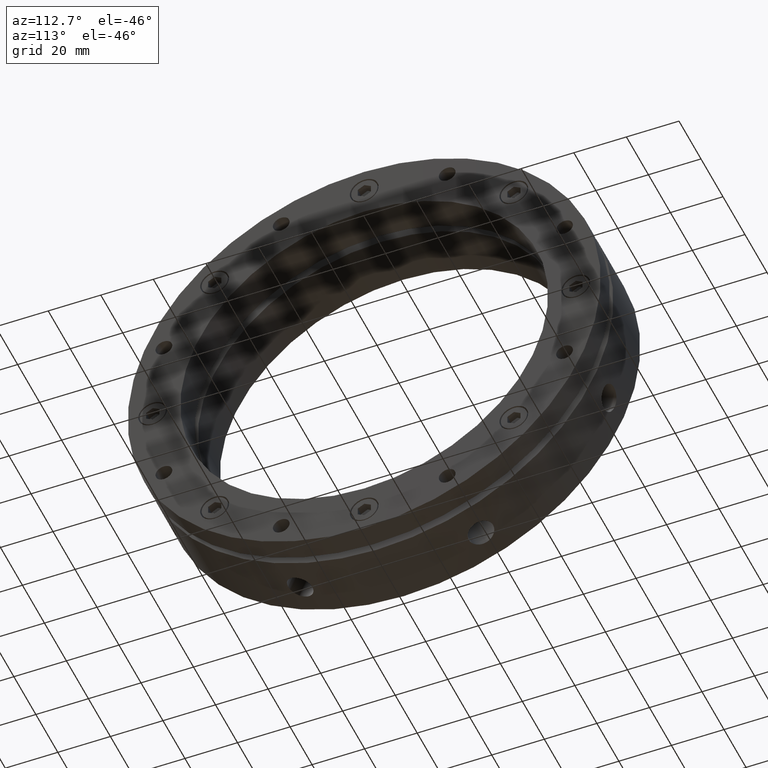
[diagram: clean part render]
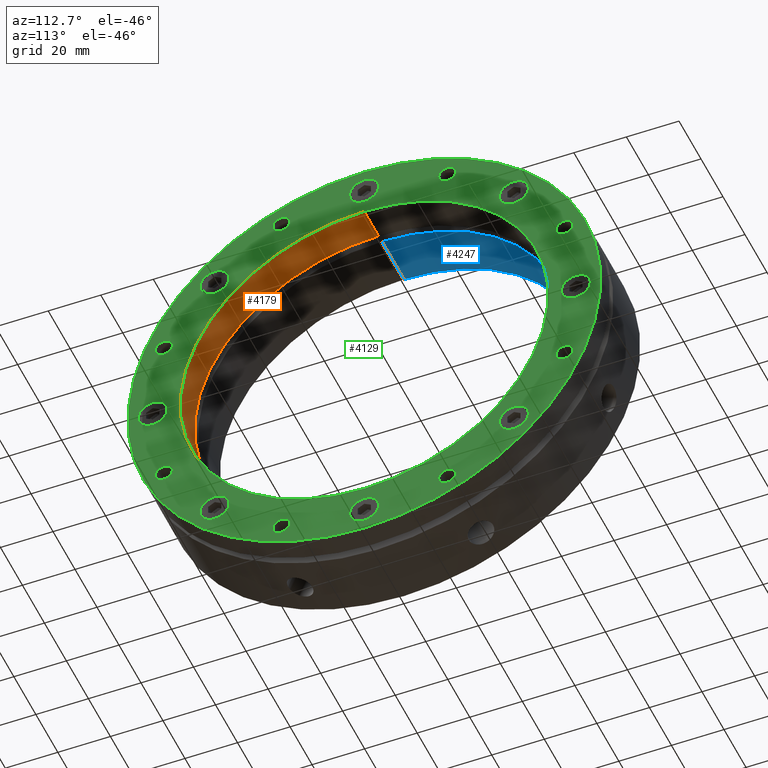
[diagram: same view with three faces highlighted in distinct colors, each labeled with its STEP entity id]
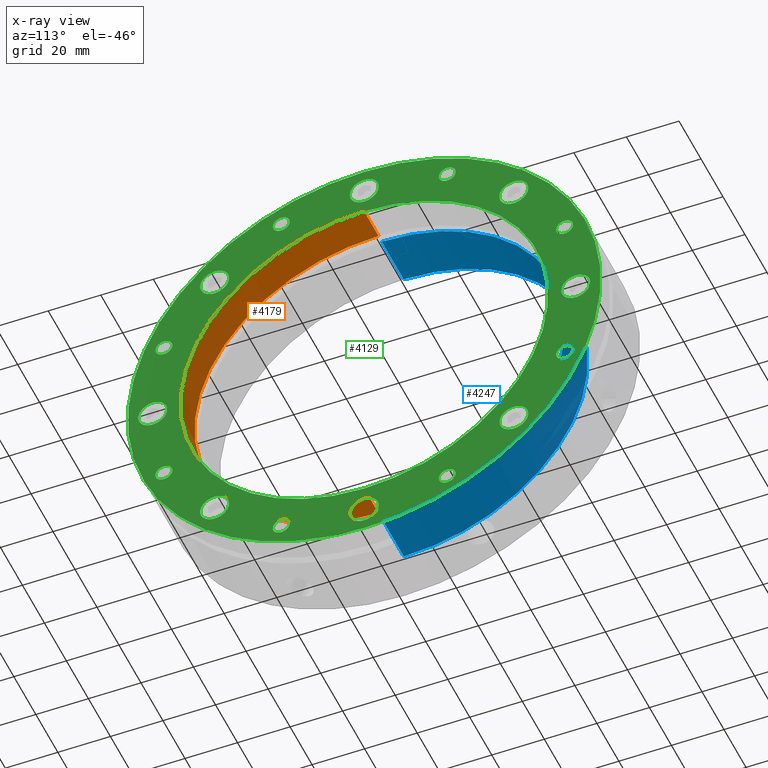
[diagram: x-ray of the same camera — body ghosted, the three highlighted faces saturated]
A machine part, auxiliary view with three faces highlighted in distinct colors.
The next image is the same camera in x-ray (body ghosted, the three faces saturated) — at least one of them is partly hidden behind the body in this view.
Their STEP definitions:

[orange] entity #4179 — the highlighted cylindrical surface (partial cylindrical patch) has radius 70 mm, axis along (1, 0, 0).
#20 = CYLINDRICAL_SURFACE ( 'NONE', #1130, 70.00000000000000000 ) ;
#29 = FACE_OUTER_BOUND ( 'NONE', #270, .T. ) ;
#270 = EDGE_LOOP ( 'NONE', ( #872, #866, #860, #838 ) ) ;
#838 = ORIENTED_EDGE ( 'NONE', *, *, #3204, .F. ) ;
#860 = ORIENTED_EDGE ( 'NONE', *, *, #3205, .F. ) ;
#866 = ORIENTED_EDGE ( 'NONE', *, *, #3206, .T. ) ;
#872 = ORIENTED_EDGE ( 'NONE', *, *, #3207, .T. ) ;
#1130 = AXIS2_PLACEMENT_3D ( 'NONE', #4900, #4898, #4896 ) ;
#1156 = LINE ( 'NONE', #1332, #1171 ) ;
#1171 = VECTOR ( 'NONE', #1330, 1000.000000000000000 ) ;
#1173 = CIRCLE ( 'NONE', #3183, 70.00000000000000000 ) ;
#1180 = VECTOR ( 'NONE', #1325, 1000.000000000000000 ) ;
#1181 = LINE ( 'NONE', #1326, #1180 ) ;
#1187 = CIRCLE ( 'NONE', #3182, 70.00000000000000000 ) ;
#1325 = DIRECTION ( 'NONE',  ( 1.000000000000000000, 0.0000000000000000000, 0.0000000000000000000 ) ) ;
#1326 = CARTESIAN_POINT ( 'NONE',  ( 17.99999999999997900, 0.0000000000000000000, -70.00000000000000000 ) ) ;
#1330 = DIRECTION ( 'NONE',  ( 1.000000000000000000, 0.0000000000000000000, 0.0000000000000000000 ) ) ;
#1332 = CARTESIAN_POINT ( 'NONE',  ( 17.99999999999997900, 8.572527594031473000E-015, 70.00000000000000000 ) ) ;
#1333 = CARTESIAN_POINT ( 'NONE',  ( 35.99999999999998600, 0.0000000000000000000, 0.0000000000000000000 ) ) ;
#1334 = DIRECTION ( 'NONE',  ( -1.000000000000000000, -0.0000000000000000000, -0.0000000000000000000 ) ) ;
#1335 = DIRECTION ( 'NONE',  ( 0.0000000000000000000, 0.0000000000000000000, -1.000000000000000000 ) ) ;
#1337 = CARTESIAN_POINT ( 'NONE',  ( 22.99999999999998600, 0.0000000000000000000, 0.0000000000000000000 ) ) ;
#1338 = DIRECTION ( 'NONE',  ( -1.000000000000000000, -0.0000000000000000000, -0.0000000000000000000 ) ) ;
#1339 = DIRECTION ( 'NONE',  ( 0.0000000000000000000, 0.0000000000000000000, -1.000000000000000000 ) ) ;
#3182 = AXIS2_PLACEMENT_3D ( 'NONE', #1337, #1338, #1339 ) ;
#3183 = AXIS2_PLACEMENT_3D ( 'NONE', #1333, #1334, #1335 ) ;
#3204 = EDGE_CURVE ( 'NONE', #3927, #3919, #1181, .T. ) ;
#3205 = EDGE_CURVE ( 'NONE', #3919, #3918, #1173, .T. ) ;
#3206 = EDGE_CURVE ( 'NONE', #3926, #3918, #1156, .T. ) ;
#3207 = EDGE_CURVE ( 'NONE', #3927, #3926, #1187, .T. ) ;
#3918 = VERTEX_POINT ( 'NONE', #4479 ) ;
#3919 = VERTEX_POINT ( 'NONE', #4480 ) ;
#3926 = VERTEX_POINT ( 'NONE', #4484 ) ;
#3927 = VERTEX_POINT ( 'NONE', #4485 ) ;
#4179 = ADVANCED_FACE ( 'NONE', ( #29 ), #20, .F. ) ;
#4479 = CARTESIAN_POINT ( 'NONE',  ( 35.99999999999998600, 8.572527594031473000E-015, 70.00000000000000000 ) ) ;
#4480 = CARTESIAN_POINT ( 'NONE',  ( 35.99999999999998600, 0.0000000000000000000, -70.00000000000000000 ) ) ;
#4484 = CARTESIAN_POINT ( 'NONE',  ( 22.99999999999998600, 8.572527594031473000E-015, 70.00000000000000000 ) ) ;
#4485 = CARTESIAN_POINT ( 'NONE',  ( 22.99999999999998600, 0.0000000000000000000, -70.00000000000000000 ) ) ;
#4896 = DIRECTION ( 'NONE',  ( 0.0000000000000000000, 0.0000000000000000000, -1.000000000000000000 ) ) ;
#4898 = DIRECTION ( 'NONE',  ( 1.000000000000000000, 0.0000000000000000000, 0.0000000000000000000 ) ) ;
#4900 = CARTESIAN_POINT ( 'NONE',  ( 17.99999999999997900, 0.0000000000000000000, 0.0000000000000000000 ) ) ;

[blue] entity #4247 — the highlighted cylindrical surface (partial cylindrical patch) has radius 70 mm, axis along (1, 0, 0).
#75 = EDGE_LOOP ( 'NONE', ( #467, #466, #465, #464 ) ) ;
#464 = ORIENTED_EDGE ( 'NONE', *, *, #5399, .F. ) ;
#465 = ORIENTED_EDGE ( 'NONE', *, *, #5999, .T. ) ;
#466 = ORIENTED_EDGE ( 'NONE', *, *, #5447, .F. ) ;
#467 = ORIENTED_EDGE ( 'NONE', *, *, #5927, .F. ) ;
#1064 = AXIS2_PLACEMENT_3D ( 'NONE', #5112, #5110, #5108 ) ;
#1572 = FACE_OUTER_BOUND ( 'NONE', #75, .T. ) ;
#1579 = CYLINDRICAL_SURFACE ( 'NONE', #1064, 70.00000000000000000 ) ;
#1659 = CIRCLE ( 'NONE', #5822, 70.00000000000000000 ) ;
#1709 = CIRCLE ( 'NONE', #3717, 70.00000000000000000 ) ;
#1875 = LINE ( 'NONE', #3023, #1877 ) ;
#1877 = VECTOR ( 'NONE', #3018, 1000.000000000000000 ) ;
#1880 = LINE ( 'NONE', #3030, #1882 ) ;
#1882 = VECTOR ( 'NONE', #3028, 1000.000000000000000 ) ;
#2156 = CARTESIAN_POINT ( 'NONE',  ( -2.081668171172168500E-014, 0.0000000000000000000, 0.0000000000000000000 ) ) ;
#2157 = DIRECTION ( 'NONE',  ( 1.000000000000000000, 0.0000000000000000000, 0.0000000000000000000 ) ) ;
#2158 = DIRECTION ( 'NONE',  ( 0.0000000000000000000, 0.0000000000000000000, -1.000000000000000000 ) ) ;
#3018 = DIRECTION ( 'NONE',  ( 1.000000000000000000, 0.0000000000000000000, 0.0000000000000000000 ) ) ;
#3023 = CARTESIAN_POINT ( 'NONE',  ( 17.99999999999997900, 8.572527594031473000E-015, 70.00000000000000000 ) ) ;
#3028 = DIRECTION ( 'NONE',  ( 1.000000000000000000, 0.0000000000000000000, 0.0000000000000000000 ) ) ;
#3030 = CARTESIAN_POINT ( 'NONE',  ( 17.99999999999997900, 0.0000000000000000000, -70.00000000000000000 ) ) ;
#3717 = AXIS2_PLACEMENT_3D ( 'NONE', #2156, #2157, #2158 ) ;
#4046 = VERTEX_POINT ( 'NONE', #4599 ) ;
#4047 = VERTEX_POINT ( 'NONE', #4600 ) ;
#4048 = VERTEX_POINT ( 'NONE', #4601 ) ;
#4055 = VERTEX_POINT ( 'NONE', #4608 ) ;
#4247 = ADVANCED_FACE ( 'NONE', ( #1572 ), #1579, .F. ) ;
#4599 = CARTESIAN_POINT ( 'NONE',  ( 19.99999999999998200, 8.572527594031473000E-015, 70.00000000000000000 ) ) ;
#4600 = CARTESIAN_POINT ( 'NONE',  ( 19.99999999999998200, 0.0000000000000000000, -70.00000000000000000 ) ) ;
#4601 = CARTESIAN_POINT ( 'NONE',  ( -2.081668171172168500E-014, 8.572527594031473000E-015, 70.00000000000000000 ) ) ;
#4608 = CARTESIAN_POINT ( 'NONE',  ( -2.081668171172168500E-014, 0.0000000000000000000, -70.00000000000000000 ) ) ;
#5108 = DIRECTION ( 'NONE',  ( 0.0000000000000000000, 0.0000000000000000000, -1.000000000000000000 ) ) ;
#5110 = DIRECTION ( 'NONE',  ( 1.000000000000000000, 0.0000000000000000000, 0.0000000000000000000 ) ) ;
#5112 = CARTESIAN_POINT ( 'NONE',  ( 17.99999999999997900, 0.0000000000000000000, 0.0000000000000000000 ) ) ;
#5282 = CARTESIAN_POINT ( 'NONE',  ( 19.99999999999998200, 0.0000000000000000000, 0.0000000000000000000 ) ) ;
#5283 = DIRECTION ( 'NONE',  ( -1.000000000000000000, -0.0000000000000000000, -0.0000000000000000000 ) ) ;
#5284 = DIRECTION ( 'NONE',  ( 0.0000000000000000000, 0.0000000000000000000, -1.000000000000000000 ) ) ;
#5399 = EDGE_CURVE ( 'NONE', #4046, #4047, #1659, .T. ) ;
#5447 = EDGE_CURVE ( 'NONE', #4055, #4048, #1709, .T. ) ;
#5822 = AXIS2_PLACEMENT_3D ( 'NONE', #5282, #5283, #5284 ) ;
#5927 = EDGE_CURVE ( 'NONE', #4048, #4046, #1875, .T. ) ;
#5999 = EDGE_CURVE ( 'NONE', #4055, #4047, #1880, .T. ) ;

[green] entity #4129 — the highlighted planar face has unit normal (1, 0, 0).
#71 = DIRECTION ( 'NONE',  ( -1.000000000000000000, -0.0000000000000000000, -0.0000000000000000000 ) ) ;
#89 = DIRECTION ( 'NONE',  ( 0.0000000000000000000, 0.0000000000000000000, -1.000000000000000000 ) ) ;
#184 = EDGE_LOOP ( 'NONE', ( #5618, #5617 ) ) ;
#185 = EDGE_LOOP ( 'NONE', ( #5620, #5619 ) ) ;
#186 = EDGE_LOOP ( 'NONE', ( #5622, #5621 ) ) ;
#189 = EDGE_LOOP ( 'NONE', ( #5624, #5623 ) ) ;
#190 = EDGE_LOOP ( 'NONE', ( #5626, #5625 ) ) ;
#191 = EDGE_LOOP ( 'NONE', ( #5628, #5627 ) ) ;
#192 = EDGE_LOOP ( 'NONE', ( #5630, #5629 ) ) ;
#193 = EDGE_LOOP ( 'NONE', ( #5632, #5631 ) ) ;
#195 = EDGE_LOOP ( 'NONE', ( #5634, #5633 ) ) ;
#197 = EDGE_LOOP ( 'NONE', ( #5636, #5635 ) ) ;
#198 = EDGE_LOOP ( 'NONE', ( #5638, #5637 ) ) ;
#199 = EDGE_LOOP ( 'NONE', ( #5640, #5639 ) ) ;
#200 = EDGE_LOOP ( 'NONE', ( #5648, #5647 ) ) ;
#201 = EDGE_LOOP ( 'NONE', ( #5646, #5645 ) ) ;
#202 = EDGE_LOOP ( 'NONE', ( #5644, #5643 ) ) ;
#203 = EDGE_LOOP ( 'NONE', ( #5650, #5649 ) ) ;
#207 = EDGE_LOOP ( 'NONE', ( #5642, #5641 ) ) ;
#208 = EDGE_LOOP ( 'NONE', ( #5652, #5651 ) ) ;
#292 = CARTESIAN_POINT ( 'NONE',  ( 35.99999999999997900, -31.57138317011985200, -76.22006143218116800 ) ) ;
#293 = FACE_BOUND ( 'NONE', #186, .T. ) ;
#294 = FACE_BOUND ( 'NONE', #189, .T. ) ;
#295 = FACE_BOUND ( 'NONE', #190, .T. ) ;
#296 = FACE_BOUND ( 'NONE', #191, .T. ) ;
#297 = FACE_BOUND ( 'NONE', #192, .T. ) ;
#298 = FACE_BOUND ( 'NONE', #193, .T. ) ;
#299 = FACE_BOUND ( 'NONE', #195, .T. ) ;
#300 = FACE_BOUND ( 'NONE', #197, .T. ) ;
#301 = FACE_BOUND ( 'NONE', #198, .T. ) ;
#302 = FACE_BOUND ( 'NONE', #199, .T. ) ;
#303 = FACE_BOUND ( 'NONE', #207, .T. ) ;
#304 = FACE_BOUND ( 'NONE', #203, .T. ) ;
#305 = FACE_BOUND ( 'NONE', #201, .T. ) ;
#307 = FACE_BOUND ( 'NONE', #208, .T. ) ;
#322 = FACE_BOUND ( 'NONE', #202, .T. ) ;
#324 = FACE_BOUND ( 'NONE', #200, .T. ) ;
#540 = CIRCLE ( 'NONE', #3155, 5.500000000000000000 ) ;
#548 = CIRCLE ( 'NONE', #3159, 3.200000000000001500 ) ;
#549 = CIRCLE ( 'NONE', #3158, 5.499999999999998200 ) ;
#551 = CIRCLE ( 'NONE', #3160, 3.200000000000001500 ) ;
#560 = CIRCLE ( 'NONE', #3163, 5.500000000000005300 ) ;
#597 = CIRCLE ( 'NONE', #3178, 3.199999999999994400 ) ;
#599 = CIRCLE ( 'NONE', #3179, 5.500000000000005300 ) ;
#1040 = AXIS2_PLACEMENT_3D ( 'NONE', #5185, #5186, #5187 ) ;
#1041 = AXIS2_PLACEMENT_3D ( 'NONE', #5182, #5183, #5184 ) ;
#1042 = AXIS2_PLACEMENT_3D ( 'NONE', #5179, #5180, #5181 ) ;
#1044 = AXIS2_PLACEMENT_3D ( 'NONE', #5173, #5174, #5175 ) ;
#1146 = CIRCLE ( 'NONE', #3193, 3.199999999999994400 ) ;
#1150 = CIRCLE ( 'NONE', #3195, 3.200000000000001500 ) ;
#1158 = CIRCLE ( 'NONE', #3181, 90.00000000000000000 ) ;
#1166 = CIRCLE ( 'NONE', #3180, 5.499999999999998200 ) ;
#1173 = CIRCLE ( 'NONE', #3183, 70.00000000000000000 ) ;
#1174 = CIRCLE ( 'NONE', #3196, 3.199999999999994400 ) ;
#1184 = CIRCLE ( 'NONE', #3185, 3.200000000000001500 ) ;
#1208 = CIRCLE ( 'NONE', #3192, 3.200000000000001500 ) ;
#1266 = AXIS2_PLACEMENT_3D ( 'NONE', #4747, #4744, #4751 ) ;
#1284 = DIRECTION ( 'NONE',  ( -1.000000000000000000, -0.0000000000000000000, -0.0000000000000000000 ) ) ;
#1286 = DIRECTION ( 'NONE',  ( 0.0000000000000000000, 0.0000000000000000000, -1.000000000000000000 ) ) ;
#1287 = CARTESIAN_POINT ( 'NONE',  ( 35.99999999999997900, 31.57138317011987600, 76.22006143218116800 ) ) ;
#1288 = CARTESIAN_POINT ( 'NONE',  ( 35.99999999999997900, 76.22006143218114000, 31.57138317011994700 ) ) ;
#1289 = DIRECTION ( 'NONE',  ( -1.000000000000000000, -0.0000000000000000000, -0.0000000000000000000 ) ) ;
#1290 = DIRECTION ( 'NONE',  ( 0.0000000000000000000, 0.0000000000000000000, -1.000000000000000000 ) ) ;
#1294 = CARTESIAN_POINT ( 'NONE',  ( 35.99999999999997900, 31.57138317011994700, -76.22006143218114000 ) ) ;
#1295 = DIRECTION ( 'NONE',  ( -1.000000000000000000, -0.0000000000000000000, -0.0000000000000000000 ) ) ;
#1296 = DIRECTION ( 'NONE',  ( 0.0000000000000000000, 0.0000000000000000000, -1.000000000000000000 ) ) ;
#1297 = CARTESIAN_POINT ( 'NONE',  ( 35.99999999999997900, 76.22006143218116800, -31.57138317011985900 ) ) ;
#1298 = DIRECTION ( 'NONE',  ( -1.000000000000000000, -0.0000000000000000000, -0.0000000000000000000 ) ) ;
#1299 = DIRECTION ( 'NONE',  ( 0.0000000000000000000, 0.0000000000000000000, -1.000000000000000000 ) ) ;
#1314 = CARTESIAN_POINT ( 'NONE',  ( 35.99999999999997900, -76.22006143218116800, 31.57138317011985200 ) ) ;
#1315 = DIRECTION ( 'NONE',  ( -1.000000000000000000, -0.0000000000000000000, -0.0000000000000000000 ) ) ;
#1316 = DIRECTION ( 'NONE',  ( 0.0000000000000000000, 0.0000000000000000000, -1.000000000000000000 ) ) ;
#1333 = CARTESIAN_POINT ( 'NONE',  ( 35.99999999999998600, 0.0000000000000000000, 0.0000000000000000000 ) ) ;
#1334 = DIRECTION ( 'NONE',  ( -1.000000000000000000, -0.0000000000000000000, -0.0000000000000000000 ) ) ;
#1335 = DIRECTION ( 'NONE',  ( 0.0000000000000000000, 0.0000000000000000000, -1.000000000000000000 ) ) ;
#1343 = CARTESIAN_POINT ( 'NONE',  ( 35.99999999999997900, 0.0000000000000000000, 0.0000000000000000000 ) ) ;
#1344 = DIRECTION ( 'NONE',  ( -1.000000000000000000, -0.0000000000000000000, -0.0000000000000000000 ) ) ;
#1345 = DIRECTION ( 'NONE',  ( 0.0000000000000000000, 0.0000000000000000000, -1.000000000000000000 ) ) ;
#1347 = CARTESIAN_POINT ( 'NONE',  ( 35.99999999999997900, 56.92209588551706600, -56.92209588551709500 ) ) ;
#1348 = DIRECTION ( 'NONE',  ( -1.000000000000000000, -0.0000000000000000000, -0.0000000000000000000 ) ) ;
#1349 = DIRECTION ( 'NONE',  ( 0.0000000000000000000, 0.0000000000000000000, -1.000000000000000000 ) ) ;
#1351 = CARTESIAN_POINT ( 'NONE',  ( 35.99999999999997900, -1.776356999999999900E-014, -80.50000000000000000 ) ) ;
#1352 = DIRECTION ( 'NONE',  ( -1.000000000000000000, -0.0000000000000000000, -0.0000000000000000000 ) ) ;
#1353 = DIRECTION ( 'NONE',  ( 0.0000000000000000000, 0.0000000000000000000, -1.000000000000000000 ) ) ;
#1356 = CARTESIAN_POINT ( 'NONE',  ( 35.99999999999997900, -31.57138317011996900, 76.22006143218114000 ) ) ;
#1357 = DIRECTION ( 'NONE',  ( -1.000000000000000000, -0.0000000000000000000, -0.0000000000000000000 ) ) ;
#1358 = DIRECTION ( 'NONE',  ( 0.0000000000000000000, 0.0000000000000000000, -1.000000000000000000 ) ) ;
#1419 = CARTESIAN_POINT ( 'NONE',  ( 35.99999999999997900, 0.0000000000000000000, 80.50000000000000000 ) ) ;
#1420 = DIRECTION ( 'NONE',  ( -1.000000000000000000, -0.0000000000000000000, -0.0000000000000000000 ) ) ;
#1421 = DIRECTION ( 'NONE',  ( 0.0000000000000000000, 0.0000000000000000000, -1.000000000000000000 ) ) ;
#1433 = CARTESIAN_POINT ( 'NONE',  ( 35.99999999999997900, -76.22006143218116800, 31.57138317011985200 ) ) ;
#1434 = DIRECTION ( 'NONE',  ( -1.000000000000000000, -0.0000000000000000000, -0.0000000000000000000 ) ) ;
#1435 = DIRECTION ( 'NONE',  ( 0.0000000000000000000, 0.0000000000000000000, -1.000000000000000000 ) ) ;
#1436 = CARTESIAN_POINT ( 'NONE',  ( 35.99999999999997900, -76.22006143218112600, -31.57138317011996900 ) ) ;
#1437 = DIRECTION ( 'NONE',  ( -1.000000000000000000, -0.0000000000000000000, -0.0000000000000000000 ) ) ;
#1438 = DIRECTION ( 'NONE',  ( 0.0000000000000000000, 0.0000000000000000000, -1.000000000000000000 ) ) ;
#1441 = CARTESIAN_POINT ( 'NONE',  ( 35.99999999999997900, -56.92209588551708100, 56.92209588551708800 ) ) ;
#1442 = DIRECTION ( 'NONE',  ( -1.000000000000000000, -0.0000000000000000000, -0.0000000000000000000 ) ) ;
#1443 = DIRECTION ( 'NONE',  ( 0.0000000000000000000, 0.0000000000000000000, -1.000000000000000000 ) ) ;
#1456 = CARTESIAN_POINT ( 'NONE',  ( 35.99999999999997900, -80.50000000000000000, 0.0000000000000000000 ) ) ;
#1457 = DIRECTION ( 'NONE',  ( -1.000000000000000000, -0.0000000000000000000, -0.0000000000000000000 ) ) ;
#1458 = DIRECTION ( 'NONE',  ( 0.0000000000000000000, 0.0000000000000000000, -1.000000000000000000 ) ) ;
#1474 = CARTESIAN_POINT ( 'NONE',  ( 35.99999999999997900, -56.92209588551708800, -56.92209588551708100 ) ) ;
#1475 = DIRECTION ( 'NONE',  ( -1.000000000000000000, -0.0000000000000000000, -0.0000000000000000000 ) ) ;
#1476 = DIRECTION ( 'NONE',  ( 0.0000000000000000000, 0.0000000000000000000, -1.000000000000000000 ) ) ;
#1618 = CIRCLE ( 'NONE', #1041, 70.00000000000000000 ) ;
#1620 = CIRCLE ( 'NONE', #1044, 5.499999999999998200 ) ;
#1624 = CIRCLE ( 'NONE', #1042, 5.500000000000005300 ) ;
#1628 = CIRCLE ( 'NONE', #1040, 90.00000000000000000 ) ;
#1650 = CIRCLE ( 'NONE', #5831, 5.499999999999998200 ) ;
#1651 = CIRCLE ( 'NONE', #5830, 5.500000000000000000 ) ;
#1666 = CIRCLE ( 'NONE', #5814, 3.199999999999994400 ) ;
#1667 = CIRCLE ( 'NONE', #5810, 5.500000000000000000 ) ;
#1669 = CIRCLE ( 'NONE', #5812, 5.499999999999998200 ) ;
#1672 = CIRCLE ( 'NONE', #5808, 5.499999999999998200 ) ;
#1677 = CIRCLE ( 'NONE', #5806, 5.500000000000005300 ) ;
#1679 = CIRCLE ( 'NONE', #5804, 5.499999999999998200 ) ;
#1769 = CIRCLE ( 'NONE', #3702, 5.500000000000000000 ) ;
#2034 = CARTESIAN_POINT ( 'NONE',  ( 35.99999999999997900, -31.57138317011996900, 76.22006143218114000 ) ) ;
#2035 = DIRECTION ( 'NONE',  ( -1.000000000000000000, -0.0000000000000000000, -0.0000000000000000000 ) ) ;
#2036 = DIRECTION ( 'NONE',  ( 0.0000000000000000000, 0.0000000000000000000, -1.000000000000000000 ) ) ;
#2041 = CARTESIAN_POINT ( 'NONE',  ( 35.99999999999997900, 56.92209588551709500, 56.92209588551706600 ) ) ;
#2042 = DIRECTION ( 'NONE',  ( -1.000000000000000000, -0.0000000000000000000, -0.0000000000000000000 ) ) ;
#2043 = DIRECTION ( 'NONE',  ( 0.0000000000000000000, 0.0000000000000000000, -1.000000000000000000 ) ) ;
#2047 = CARTESIAN_POINT ( 'NONE',  ( 35.99999999999997900, 80.50000000000000000, -1.776356999999999900E-014 ) ) ;
#2048 = DIRECTION ( 'NONE',  ( -1.000000000000000000, -0.0000000000000000000, -0.0000000000000000000 ) ) ;
#2049 = DIRECTION ( 'NONE',  ( 0.0000000000000000000, 0.0000000000000000000, -1.000000000000000000 ) ) ;
#2053 = CARTESIAN_POINT ( 'NONE',  ( 35.99999999999997900, 56.92209588551706600, -56.92209588551709500 ) ) ;
#2054 = DIRECTION ( 'NONE',  ( -1.000000000000000000, -0.0000000000000000000, -0.0000000000000000000 ) ) ;
#2055 = DIRECTION ( 'NONE',  ( 0.0000000000000000000, 0.0000000000000000000, -1.000000000000000000 ) ) ;
#2059 = CARTESIAN_POINT ( 'NONE',  ( 35.99999999999997900, -1.776356999999999900E-014, -80.50000000000000000 ) ) ;
#2060 = DIRECTION ( 'NONE',  ( -1.000000000000000000, -0.0000000000000000000, -0.0000000000000000000 ) ) ;
#2061 = DIRECTION ( 'NONE',  ( 0.0000000000000000000, 0.0000000000000000000, -1.000000000000000000 ) ) ;
#2065 = CARTESIAN_POINT ( 'NONE',  ( 35.99999999999997900, -56.92209588551708800, -56.92209588551708100 ) ) ;
#2066 = DIRECTION ( 'NONE',  ( -1.000000000000000000, -0.0000000000000000000, -0.0000000000000000000 ) ) ;
#2067 = DIRECTION ( 'NONE',  ( 0.0000000000000000000, 0.0000000000000000000, -1.000000000000000000 ) ) ;
#2776 = CARTESIAN_POINT ( 'NONE',  ( 35.99999999999997900, -80.50000000000000000, 0.0000000000000000000 ) ) ;
#2777 = DIRECTION ( 'NONE',  ( -1.000000000000000000, -0.0000000000000000000, -0.0000000000000000000 ) ) ;
#2778 = DIRECTION ( 'NONE',  ( 0.0000000000000000000, 0.0000000000000000000, -1.000000000000000000 ) ) ;
#3127 = AXIS2_PLACEMENT_3D ( 'NONE', #4336, #4337, #4338 ) ;
#3128 = EDGE_CURVE ( 'NONE', #3848, #3849, #1174, .T. ) ;
#3131 = AXIS2_PLACEMENT_3D ( 'NONE', #4323, #4324, #4325 ) ;
#3133 = EDGE_CURVE ( 'NONE', #3852, #3853, #1150, .T. ) ;
#3134 = AXIS2_PLACEMENT_3D ( 'NONE', #4313, #4314, #4315 ) ;
#3136 = AXIS2_PLACEMENT_3D ( 'NONE', #4305, #4306, #4307 ) ;
#3137 = AXIS2_PLACEMENT_3D ( 'NONE', #4301, #4302, #4303 ) ;
#3140 = AXIS2_PLACEMENT_3D ( 'NONE', #4293, #4294, #4295 ) ;
#3143 = EDGE_CURVE ( 'NONE', #3860, #3861, #1146, .T. ) ;
#3147 = AXIS2_PLACEMENT_3D ( 'NONE', #292, #71, #89 ) ;
#3150 = EDGE_CURVE ( 'NONE', #3856, #3857, #1208, .T. ) ;
#3151 = AXIS2_PLACEMENT_3D ( 'NONE', #1474, #1475, #1476 ) ;
#3155 = AXIS2_PLACEMENT_3D ( 'NONE', #1456, #1457, #1458 ) ;
#3158 = AXIS2_PLACEMENT_3D ( 'NONE', #1441, #1442, #1443 ) ;
#3159 = AXIS2_PLACEMENT_3D ( 'NONE', #1436, #1437, #1438 ) ;
#3160 = AXIS2_PLACEMENT_3D ( 'NONE', #1433, #1434, #1435 ) ;
#3163 = AXIS2_PLACEMENT_3D ( 'NONE', #1419, #1420, #1421 ) ;
#3178 = AXIS2_PLACEMENT_3D ( 'NONE', #1356, #1357, #1358 ) ;
#3179 = AXIS2_PLACEMENT_3D ( 'NONE', #1351, #1352, #1353 ) ;
#3180 = AXIS2_PLACEMENT_3D ( 'NONE', #1347, #1348, #1349 ) ;
#3181 = AXIS2_PLACEMENT_3D ( 'NONE', #1343, #1344, #1345 ) ;
#3183 = AXIS2_PLACEMENT_3D ( 'NONE', #1333, #1334, #1335 ) ;
#3185 = AXIS2_PLACEMENT_3D ( 'NONE', #1314, #1315, #1316 ) ;
#3191 = EDGE_CURVE ( 'NONE', #3873, #3874, #1184, .T. ) ;
#3192 = AXIS2_PLACEMENT_3D ( 'NONE', #1297, #1298, #1299 ) ;
#3193 = AXIS2_PLACEMENT_3D ( 'NONE', #1294, #1295, #1296 ) ;
#3195 = AXIS2_PLACEMENT_3D ( 'NONE', #1288, #1289, #1290 ) ;
#3196 = AXIS2_PLACEMENT_3D ( 'NONE', #1287, #1284, #1286 ) ;
#3205 = EDGE_CURVE ( 'NONE', #3919, #3918, #1173, .T. ) ;
#3209 = EDGE_CURVE ( 'NONE', #3925, #3924, #1158, .T. ) ;
#3211 = EDGE_CURVE ( 'NONE', #3890, #3889, #1166, .T. ) ;
#3213 = EDGE_CURVE ( 'NONE', #3894, #3893, #599, .T. ) ;
#3214 = EDGE_CURVE ( 'NONE', #3878, #3877, #597, .T. ) ;
#3240 = EDGE_CURVE ( 'NONE', #3915, #3910, #560, .T. ) ;
#3246 = EDGE_CURVE ( 'NONE', #3874, #3873, #551, .T. ) ;
#3247 = EDGE_CURVE ( 'NONE', #3870, #3869, #548, .T. ) ;
#3248 = EDGE_CURVE ( 'NONE', #3907, #3906, #549, .T. ) ;
#3254 = EDGE_CURVE ( 'NONE', #3903, #3902, #540, .T. ) ;
#3262 = EDGE_CURVE ( 'NONE', #3899, #3898, #5994, .T. ) ;
#3268 = EDGE_CURVE ( 'NONE', #3866, #3865, #5987, .T. ) ;
#3282 = EDGE_CURVE ( 'NONE', #3861, #3860, #5964, .T. ) ;
#3285 = EDGE_CURVE ( 'NONE', #3869, #3870, #5960, .T. ) ;
#3286 = EDGE_CURVE ( 'NONE', #3865, #3866, #5957, .T. ) ;
#3289 = EDGE_CURVE ( 'NONE', #3857, #3856, #5955, .T. ) ;
#3293 = EDGE_CURVE ( 'NONE', #3853, #3852, #5949, .T. ) ;
#3298 = EDGE_CURVE ( 'NONE', #3849, #3848, #5942, .T. ) ;
#3702 = AXIS2_PLACEMENT_3D ( 'NONE', #2776, #2777, #2778 ) ;
#3848 = VERTEX_POINT ( 'NONE', #4414 ) ;
#3849 = VERTEX_POINT ( 'NONE', #4415 ) ;
#3852 = VERTEX_POINT ( 'NONE', #4418 ) ;
#3853 = VERTEX_POINT ( 'NONE', #4419 ) ;
#3856 = VERTEX_POINT ( 'NONE', #4422 ) ;
#3857 = VERTEX_POINT ( 'NONE', #4423 ) ;
#3860 = VERTEX_POINT ( 'NONE', #4426 ) ;
#3861 = VERTEX_POINT ( 'NONE', #4427 ) ;
#3865 = VERTEX_POINT ( 'NONE', #4431 ) ;
#3866 = VERTEX_POINT ( 'NONE', #4432 ) ;
#3869 = VERTEX_POINT ( 'NONE', #4435 ) ;
#3870 = VERTEX_POINT ( 'NONE', #4436 ) ;
#3873 = VERTEX_POINT ( 'NONE', #4439 ) ;
#3874 = VERTEX_POINT ( 'NONE', #4440 ) ;
#3877 = VERTEX_POINT ( 'NONE', #4443 ) ;
#3878 = VERTEX_POINT ( 'NONE', #4444 ) ;
#3881 = VERTEX_POINT ( 'NONE', #4447 ) ;
#3882 = VERTEX_POINT ( 'NONE', #4448 ) ;
#3885 = VERTEX_POINT ( 'NONE', #4451 ) ;
#3886 = VERTEX_POINT ( 'NONE', #4452 ) ;
#3889 = VERTEX_POINT ( 'NONE', #4455 ) ;
#3890 = VERTEX_POINT ( 'NONE', #4456 ) ;
#3893 = VERTEX_POINT ( 'NONE', #4459 ) ;
#3894 = VERTEX_POINT ( 'NONE', #4460 ) ;
#3898 = VERTEX_POINT ( 'NONE', #4463 ) ;
#3899 = VERTEX_POINT ( 'NONE', #4464 ) ;
#3902 = VERTEX_POINT ( 'NONE', #4467 ) ;
#3903 = VERTEX_POINT ( 'NONE', #4468 ) ;
#3906 = VERTEX_POINT ( 'NONE', #4471 ) ;
#3907 = VERTEX_POINT ( 'NONE', #4472 ) ;
#3910 = VERTEX_POINT ( 'NONE', #4475 ) ;
#3915 = VERTEX_POINT ( 'NONE', #4476 ) ;
#3918 = VERTEX_POINT ( 'NONE', #4479 ) ;
#3919 = VERTEX_POINT ( 'NONE', #4480 ) ;
#3924 = VERTEX_POINT ( 'NONE', #4482 ) ;
#3925 = VERTEX_POINT ( 'NONE', #4483 ) ;
#4129 = ADVANCED_FACE ( 'NONE', ( #307, #304, #324, #305, #322, #303, #302, #301, #300, #299, #298, #297, #296, #295, #294, #293, #5357, #5346 ), #4749, .T. ) ;
#4293 = CARTESIAN_POINT ( 'NONE',  ( 35.99999999999997900, 31.57138317011994700, -76.22006143218114000 ) ) ;
#4294 = DIRECTION ( 'NONE',  ( -1.000000000000000000, -0.0000000000000000000, -0.0000000000000000000 ) ) ;
#4295 = DIRECTION ( 'NONE',  ( 0.0000000000000000000, 0.0000000000000000000, -1.000000000000000000 ) ) ;
#4301 = CARTESIAN_POINT ( 'NONE',  ( 35.99999999999997900, -76.22006143218112600, -31.57138317011996900 ) ) ;
#4302 = DIRECTION ( 'NONE',  ( -1.000000000000000000, -0.0000000000000000000, -0.0000000000000000000 ) ) ;
#4303 = DIRECTION ( 'NONE',  ( 0.0000000000000000000, 0.0000000000000000000, -1.000000000000000000 ) ) ;
#4305 = CARTESIAN_POINT ( 'NONE',  ( 35.99999999999997900, -31.57138317011985200, -76.22006143218116800 ) ) ;
#4306 = DIRECTION ( 'NONE',  ( -1.000000000000000000, -0.0000000000000000000, -0.0000000000000000000 ) ) ;
#4307 = DIRECTION ( 'NONE',  ( 0.0000000000000000000, 0.0000000000000000000, -1.000000000000000000 ) ) ;
#4313 = CARTESIAN_POINT ( 'NONE',  ( 35.99999999999997900, 76.22006143218116800, -31.57138317011985900 ) ) ;
#4314 = DIRECTION ( 'NONE',  ( -1.000000000000000000, -0.0000000000000000000, -0.0000000000000000000 ) ) ;
#4315 = DIRECTION ( 'NONE',  ( 0.0000000000000000000, 0.0000000000000000000, -1.000000000000000000 ) ) ;
#4323 = CARTESIAN_POINT ( 'NONE',  ( 35.99999999999997900, 76.22006143218114000, 31.57138317011994700 ) ) ;
#4324 = DIRECTION ( 'NONE',  ( -1.000000000000000000, -0.0000000000000000000, -0.0000000000000000000 ) ) ;
#4325 = DIRECTION ( 'NONE',  ( 0.0000000000000000000, 0.0000000000000000000, -1.000000000000000000 ) ) ;
#4336 = CARTESIAN_POINT ( 'NONE',  ( 35.99999999999997900, 31.57138317011987600, 76.22006143218116800 ) ) ;
#4337 = DIRECTION ( 'NONE',  ( -1.000000000000000000, -0.0000000000000000000, -0.0000000000000000000 ) ) ;
#4338 = DIRECTION ( 'NONE',  ( 0.0000000000000000000, 0.0000000000000000000, -1.000000000000000000 ) ) ;
#4414 = CARTESIAN_POINT ( 'NONE',  ( 35.99999999999997900, 31.57138317011987600, 79.42006143218117100 ) ) ;
#4415 = CARTESIAN_POINT ( 'NONE',  ( 35.99999999999997900, 31.57138317011987600, 73.02006143218118000 ) ) ;
#4418 = CARTESIAN_POINT ( 'NONE',  ( 35.99999999999997900, 76.22006143218114000, 34.77138317011994700 ) ) ;
#4419 = CARTESIAN_POINT ( 'NONE',  ( 35.99999999999997900, 76.22006143218114000, 28.37138317011994500 ) ) ;
#4422 = CARTESIAN_POINT ( 'NONE',  ( 35.99999999999997900, 76.22006143218116800, -28.37138317011985600 ) ) ;
#4423 = CARTESIAN_POINT ( 'NONE',  ( 35.99999999999997900, 76.22006143218116800, -34.77138317011986100 ) ) ;
#4426 = CARTESIAN_POINT ( 'NONE',  ( 35.99999999999997900, 31.57138317011994700, -73.02006143218115100 ) ) ;
#4427 = CARTESIAN_POINT ( 'NONE',  ( 35.99999999999997900, 31.57138317011994700, -79.42006143218114300 ) ) ;
#4431 = CARTESIAN_POINT ( 'NONE',  ( 35.99999999999997900, -31.57138317011985200, -73.02006143218118000 ) ) ;
#4432 = CARTESIAN_POINT ( 'NONE',  ( 35.99999999999997900, -31.57138317011985200, -79.42006143218117100 ) ) ;
#4435 = CARTESIAN_POINT ( 'NONE',  ( 35.99999999999997900, -76.22006143218112600, -28.37138317011996600 ) ) ;
#4436 = CARTESIAN_POINT ( 'NONE',  ( 35.99999999999997900, -76.22006143218112600, -34.77138317011996800 ) ) ;
#4439 = CARTESIAN_POINT ( 'NONE',  ( 35.99999999999997900, -76.22006143218116800, 34.77138317011985400 ) ) ;
#4440 = CARTESIAN_POINT ( 'NONE',  ( 35.99999999999997900, -76.22006143218116800, 28.37138317011984900 ) ) ;
#4443 = CARTESIAN_POINT ( 'NONE',  ( 35.99999999999997900, -31.57138317011996900, 79.42006143218114300 ) ) ;
#4444 = CARTESIAN_POINT ( 'NONE',  ( 35.99999999999997900, -31.57138317011996900, 73.02006143218115100 ) ) ;
#4447 = CARTESIAN_POINT ( 'NONE',  ( 35.99999999999997900, 56.92209588551709500, 62.42209588551706600 ) ) ;
#4448 = CARTESIAN_POINT ( 'NONE',  ( 35.99999999999997900, 56.92209588551709500, 51.42209588551707400 ) ) ;
#4451 = CARTESIAN_POINT ( 'NONE',  ( 35.99999999999997900, 80.50000000000000000, 5.499999999999982200 ) ) ;
#4452 = CARTESIAN_POINT ( 'NONE',  ( 35.99999999999997900, 80.50000000000000000, -5.500000000000016900 ) ) ;
#4455 = CARTESIAN_POINT ( 'NONE',  ( 35.99999999999997900, 56.92209588551706600, -51.42209588551709500 ) ) ;
#4456 = CARTESIAN_POINT ( 'NONE',  ( 35.99999999999997900, 56.92209588551706600, -62.42209588551709500 ) ) ;
#4459 = CARTESIAN_POINT ( 'NONE',  ( 35.99999999999997900, -1.709001426046895600E-014, -75.00000000000000000 ) ) ;
#4460 = CARTESIAN_POINT ( 'NONE',  ( 35.99999999999997900, -1.776356999999999900E-014, -86.00000000000000000 ) ) ;
#4463 = CARTESIAN_POINT ( 'NONE',  ( 35.99999999999997900, -56.92209588551708800, -51.42209588551708800 ) ) ;
#4464 = CARTESIAN_POINT ( 'NONE',  ( 35.99999999999997900, -56.92209588551708800, -62.42209588551708100 ) ) ;
#4467 = CARTESIAN_POINT ( 'NONE',  ( 35.99999999999997900, -80.50000000000000000, 5.500000000000000000 ) ) ;
#4468 = CARTESIAN_POINT ( 'NONE',  ( 35.99999999999997900, -80.50000000000000000, -5.500000000000000000 ) ) ;
#4471 = CARTESIAN_POINT ( 'NONE',  ( 35.99999999999997900, -56.92209588551708100, 62.42209588551708800 ) ) ;
#4472 = CARTESIAN_POINT ( 'NONE',  ( 35.99999999999997900, -56.92209588551708100, 51.42209588551708800 ) ) ;
#4475 = CARTESIAN_POINT ( 'NONE',  ( 35.99999999999997900, 6.735557395310435100E-016, 86.00000000000000000 ) ) ;
#4476 = CARTESIAN_POINT ( 'NONE',  ( 35.99999999999997900, 0.0000000000000000000, 75.00000000000000000 ) ) ;
#4479 = CARTESIAN_POINT ( 'NONE',  ( 35.99999999999998600, 8.572527594031473000E-015, 70.00000000000000000 ) ) ;
#4480 = CARTESIAN_POINT ( 'NONE',  ( 35.99999999999998600, 0.0000000000000000000, -70.00000000000000000 ) ) ;
#4482 = CARTESIAN_POINT ( 'NONE',  ( 35.99999999999997900, 0.0000000000000000000, -90.00000000000000000 ) ) ;
#4483 = CARTESIAN_POINT ( 'NONE',  ( 35.99999999999997900, 1.102182119232617900E-014, 90.00000000000000000 ) ) ;
#4744 = DIRECTION ( 'NONE',  ( 1.000000000000000000, -0.0000000000000000000, 0.0000000000000000000 ) ) ;
#4747 = CARTESIAN_POINT ( 'NONE',  ( 35.99999999999997900, 80.00000000000000000, 0.0000000000000000000 ) ) ;
#4749 = PLANE ( 'NONE',  #1266 ) ;
#4751 = DIRECTION ( 'NONE',  ( 0.0000000000000000000, 0.0000000000000000000, -1.000000000000000000 ) ) ;
#5173 = CARTESIAN_POINT ( 'NONE',  ( 35.99999999999997900, -56.92209588551708100, 56.92209588551708800 ) ) ;
#5174 = DIRECTION ( 'NONE',  ( -1.000000000000000000, -0.0000000000000000000, -0.0000000000000000000 ) ) ;
#5175 = DIRECTION ( 'NONE',  ( 0.0000000000000000000, 0.0000000000000000000, -1.000000000000000000 ) ) ;
#5179 = CARTESIAN_POINT ( 'NONE',  ( 35.99999999999997900, 0.0000000000000000000, 80.50000000000000000 ) ) ;
#5180 = DIRECTION ( 'NONE',  ( -1.000000000000000000, -0.0000000000000000000, -0.0000000000000000000 ) ) ;
#5181 = DIRECTION ( 'NONE',  ( 0.0000000000000000000, 0.0000000000000000000, -1.000000000000000000 ) ) ;
#5182 = CARTESIAN_POINT ( 'NONE',  ( 35.99999999999998600, 0.0000000000000000000, 0.0000000000000000000 ) ) ;
#5183 = DIRECTION ( 'NONE',  ( -1.000000000000000000, -0.0000000000000000000, -0.0000000000000000000 ) ) ;
#5184 = DIRECTION ( 'NONE',  ( 0.0000000000000000000, 0.0000000000000000000, -1.000000000000000000 ) ) ;
#5185 = CARTESIAN_POINT ( 'NONE',  ( 35.99999999999997900, 0.0000000000000000000, 0.0000000000000000000 ) ) ;
#5186 = DIRECTION ( 'NONE',  ( -1.000000000000000000, -0.0000000000000000000, -0.0000000000000000000 ) ) ;
#5187 = DIRECTION ( 'NONE',  ( 0.0000000000000000000, 0.0000000000000000000, -1.000000000000000000 ) ) ;
#5255 = CARTESIAN_POINT ( 'NONE',  ( 35.99999999999997900, 56.92209588551709500, 56.92209588551706600 ) ) ;
#5256 = DIRECTION ( 'NONE',  ( -1.000000000000000000, -0.0000000000000000000, -0.0000000000000000000 ) ) ;
#5257 = DIRECTION ( 'NONE',  ( 0.0000000000000000000, 0.0000000000000000000, -1.000000000000000000 ) ) ;
#5258 = CARTESIAN_POINT ( 'NONE',  ( 35.99999999999997900, 80.50000000000000000, -1.776356999999999900E-014 ) ) ;
#5259 = DIRECTION ( 'NONE',  ( -1.000000000000000000, -0.0000000000000000000, -0.0000000000000000000 ) ) ;
#5260 = DIRECTION ( 'NONE',  ( 0.0000000000000000000, 0.0000000000000000000, -1.000000000000000000 ) ) ;
#5346 = FACE_OUTER_BOUND ( 'NONE', #184, .T. ) ;
#5357 = FACE_BOUND ( 'NONE', #185, .T. ) ;
#5363 = EDGE_CURVE ( 'NONE', #3906, #3907, #1620, .T. ) ;
#5365 = EDGE_CURVE ( 'NONE', #3910, #3915, #1624, .T. ) ;
#5366 = EDGE_CURVE ( 'NONE', #3918, #3919, #1618, .T. ) ;
#5367 = EDGE_CURVE ( 'NONE', #3924, #3925, #1628, .T. ) ;
#5390 = EDGE_CURVE ( 'NONE', #3882, #3881, #1650, .T. ) ;
#5391 = EDGE_CURVE ( 'NONE', #3886, #3885, #1651, .T. ) ;
#5406 = EDGE_CURVE ( 'NONE', #3877, #3878, #1666, .T. ) ;
#5408 = EDGE_CURVE ( 'NONE', #3881, #3882, #1669, .T. ) ;
#5411 = EDGE_CURVE ( 'NONE', #3885, #3886, #1667, .T. ) ;
#5413 = EDGE_CURVE ( 'NONE', #3889, #3890, #1672, .T. ) ;
#5415 = EDGE_CURVE ( 'NONE', #3893, #3894, #1677, .T. ) ;
#5417 = EDGE_CURVE ( 'NONE', #3898, #3899, #1679, .T. ) ;
#5498 = EDGE_CURVE ( 'NONE', #3902, #3903, #1769, .T. ) ;
#5617 = ORIENTED_EDGE ( 'NONE', *, *, #3209, .F. ) ;
#5618 = ORIENTED_EDGE ( 'NONE', *, *, #5367, .F. ) ;
#5619 = ORIENTED_EDGE ( 'NONE', *, *, #3128, .T. ) ;
#5620 = ORIENTED_EDGE ( 'NONE', *, *, #3298, .T. ) ;
#5621 = ORIENTED_EDGE ( 'NONE', *, *, #3133, .T. ) ;
#5622 = ORIENTED_EDGE ( 'NONE', *, *, #3293, .T. ) ;
#5623 = ORIENTED_EDGE ( 'NONE', *, *, #3150, .T. ) ;
#5624 = ORIENTED_EDGE ( 'NONE', *, *, #3289, .T. ) ;
#5625 = ORIENTED_EDGE ( 'NONE', *, *, #3143, .T. ) ;
#5626 = ORIENTED_EDGE ( 'NONE', *, *, #3282, .T. ) ;
#5627 = ORIENTED_EDGE ( 'NONE', *, *, #3286, .T. ) ;
#5628 = ORIENTED_EDGE ( 'NONE', *, *, #3268, .T. ) ;
#5629 = ORIENTED_EDGE ( 'NONE', *, *, #3285, .T. ) ;
#5630 = ORIENTED_EDGE ( 'NONE', *, *, #3247, .T. ) ;
#5631 = ORIENTED_EDGE ( 'NONE', *, *, #3191, .T. ) ;
#5632 = ORIENTED_EDGE ( 'NONE', *, *, #3246, .T. ) ;
#5633 = ORIENTED_EDGE ( 'NONE', *, *, #5406, .T. ) ;
#5634 = ORIENTED_EDGE ( 'NONE', *, *, #3214, .T. ) ;
#5635 = ORIENTED_EDGE ( 'NONE', *, *, #5408, .T. ) ;
#5636 = ORIENTED_EDGE ( 'NONE', *, *, #5390, .T. ) ;
#5637 = ORIENTED_EDGE ( 'NONE', *, *, #5411, .T. ) ;
#5638 = ORIENTED_EDGE ( 'NONE', *, *, #5391, .T. ) ;
#5639 = ORIENTED_EDGE ( 'NONE', *, *, #5413, .T. ) ;
#5640 = ORIENTED_EDGE ( 'NONE', *, *, #3211, .T. ) ;
#5641 = ORIENTED_EDGE ( 'NONE', *, *, #5415, .T. ) ;
#5642 = ORIENTED_EDGE ( 'NONE', *, *, #3213, .T. ) ;
#5643 = ORIENTED_EDGE ( 'NONE', *, *, #5417, .T. ) ;
#5644 = ORIENTED_EDGE ( 'NONE', *, *, #3262, .T. ) ;
#5645 = ORIENTED_EDGE ( 'NONE', *, *, #5498, .T. ) ;
#5646 = ORIENTED_EDGE ( 'NONE', *, *, #3254, .T. ) ;
#5647 = ORIENTED_EDGE ( 'NONE', *, *, #5363, .T. ) ;
#5648 = ORIENTED_EDGE ( 'NONE', *, *, #3248, .T. ) ;
#5649 = ORIENTED_EDGE ( 'NONE', *, *, #5365, .T. ) ;
#5650 = ORIENTED_EDGE ( 'NONE', *, *, #3240, .T. ) ;
#5651 = ORIENTED_EDGE ( 'NONE', *, *, #5366, .T. ) ;
#5652 = ORIENTED_EDGE ( 'NONE', *, *, #3205, .T. ) ;
#5804 = AXIS2_PLACEMENT_3D ( 'NONE', #2065, #2066, #2067 ) ;
#5806 = AXIS2_PLACEMENT_3D ( 'NONE', #2059, #2060, #2061 ) ;
#5808 = AXIS2_PLACEMENT_3D ( 'NONE', #2053, #2054, #2055 ) ;
#5810 = AXIS2_PLACEMENT_3D ( 'NONE', #2047, #2048, #2049 ) ;
#5812 = AXIS2_PLACEMENT_3D ( 'NONE', #2041, #2042, #2043 ) ;
#5814 = AXIS2_PLACEMENT_3D ( 'NONE', #2034, #2035, #2036 ) ;
#5830 = AXIS2_PLACEMENT_3D ( 'NONE', #5258, #5259, #5260 ) ;
#5831 = AXIS2_PLACEMENT_3D ( 'NONE', #5255, #5256, #5257 ) ;
#5942 = CIRCLE ( 'NONE', #3127, 3.199999999999994400 ) ;
#5949 = CIRCLE ( 'NONE', #3131, 3.200000000000001500 ) ;
#5955 = CIRCLE ( 'NONE', #3134, 3.200000000000001500 ) ;
#5957 = CIRCLE ( 'NONE', #3136, 3.199999999999994400 ) ;
#5960 = CIRCLE ( 'NONE', #3137, 3.200000000000001500 ) ;
#5964 = CIRCLE ( 'NONE', #3140, 3.199999999999994400 ) ;
#5987 = CIRCLE ( 'NONE', #3147, 3.199999999999994400 ) ;
#5994 = CIRCLE ( 'NONE', #3151, 5.499999999999998200 ) ;